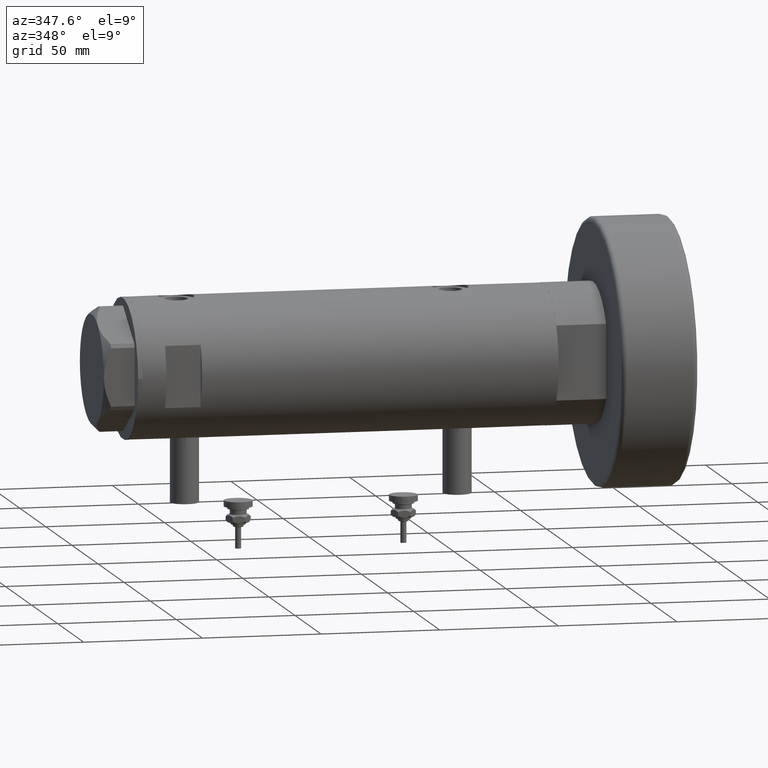
[diagram: clean part render]
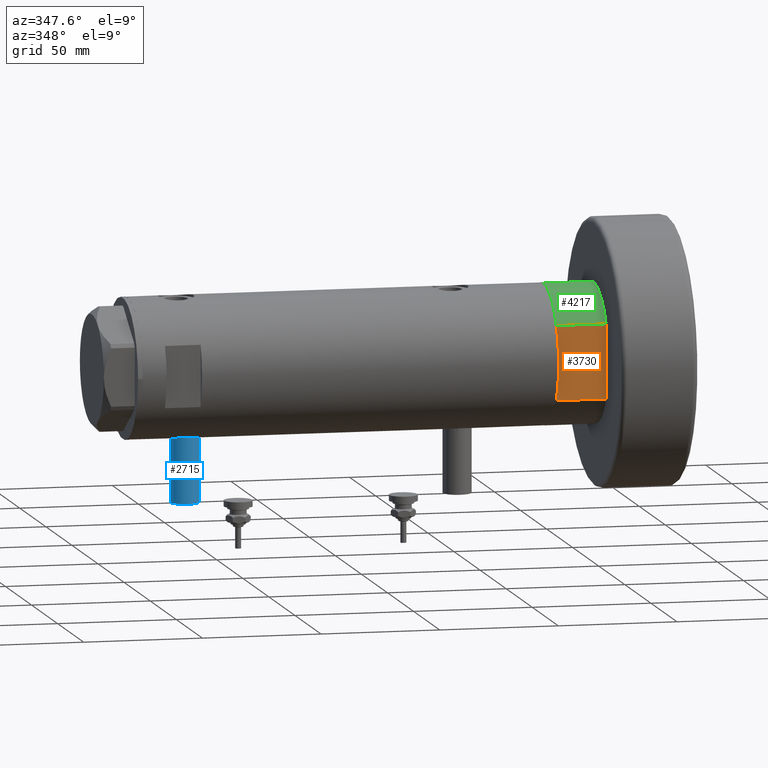
[diagram: same view with three faces highlighted in distinct colors, each labeled with its STEP entity id]
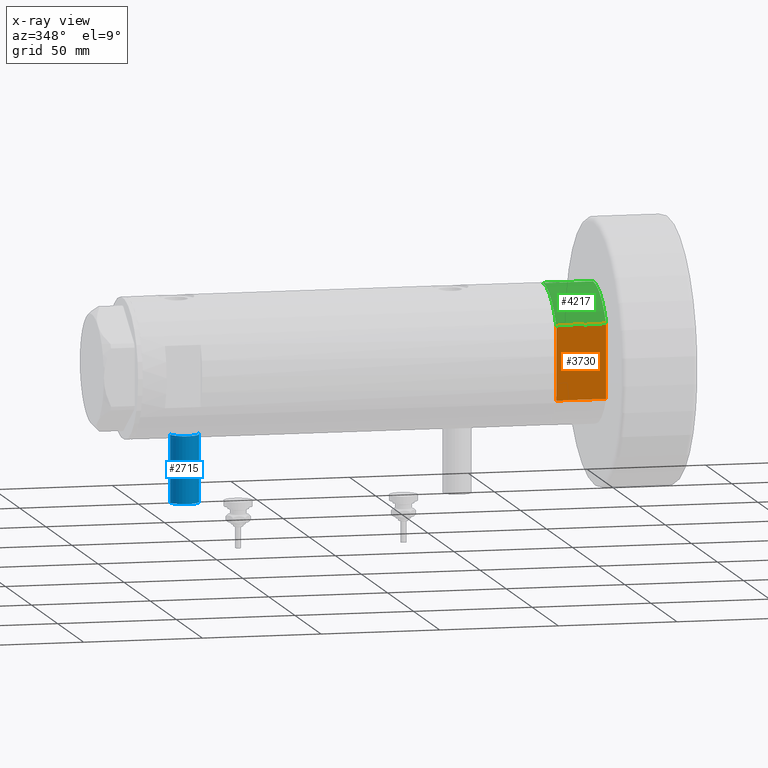
[diagram: x-ray of the same camera — body ghosted, the three highlighted faces saturated]
A machine part, auxiliary view with three faces highlighted in distinct colors.
The next image is the same camera in x-ray (body ghosted, the three faces saturated) — at least one of them is partly hidden behind the body in this view.
Their STEP definitions:

[orange] entity #3730 — the highlighted planar face has unit normal (-0, 1, 0).
#228 = VERTEX_POINT ( 'NONE', #1694 ) ;
#336 = CARTESIAN_POINT ( 'NONE',  ( 15.66045976336583045, -25.00000000000000000, 21.00000000000000355 ) ) ;
#518 = VECTOR ( 'NONE', #4423, 1000.000000000000000 ) ;
#596 = ORIENTED_EDGE ( 'NONE', *, *, #895, .F. ) ;
#728 = EDGE_LOOP ( 'NONE', ( #3196, #4995, #596, #6149, #5701, #3790 ) ) ;
#801 = CARTESIAN_POINT ( 'NONE',  ( 7.141428428542853091, -25.00000000000000000, 0.000000000000000000 ) ) ;
#869 = DIRECTION ( 'NONE',  ( -1.000000000000000000, -0.000000000000000000, -0.000000000000000000 ) ) ;
#895 = EDGE_CURVE ( 'NONE', #228, #3886, #2752, .T. ) ;
#928 = CARTESIAN_POINT ( 'NONE',  ( -15.66045976336583401, -25.00000000000000000, 0.000000000000000000 ) ) ;
#1187 = EDGE_CURVE ( 'NONE', #2099, #1288, #1899, .T. ) ;
#1288 = VERTEX_POINT ( 'NONE', #5241 ) ;
#1490 = LINE ( 'NONE', #928, #1645 ) ;
#1645 = VECTOR ( 'NONE', #869, 1000.000000000000000 ) ;
#1685 = EDGE_CURVE ( 'NONE', #2807, #2099, #2451, .T. ) ;
#1688 = LINE ( 'NONE', #4622, #2677 ) ;
#1694 = CARTESIAN_POINT ( 'NONE',  ( -7.141428428542853091, -25.00000000000000000, 0.000000000000000000 ) ) ;
#1836 = DIRECTION ( 'NONE',  ( -1.000000000000000000, -0.000000000000000000, -0.000000000000000000 ) ) ;
#1899 = LINE ( 'NONE', #4427, #3178 ) ;
#2099 = VERTEX_POINT ( 'NONE', #336 ) ;
#2341 = VECTOR ( 'NONE', #5664, 1000.000000000000000 ) ;
#2451 = LINE ( 'NONE', #2957, #518 ) ;
#2677 = VECTOR ( 'NONE', #3660, 1000.000000000000000 ) ;
#2701 = CARTESIAN_POINT ( 'NONE',  ( -15.66045976336583401, -25.00000000000000000, 0.000000000000000000 ) ) ;
#2752 = LINE ( 'NONE', #5689, #2341 ) ;
#2790 = CARTESIAN_POINT ( 'NONE',  ( 15.66045976336583401, -25.00000000000000000, 0.000000000000000000 ) ) ;
#2807 = VERTEX_POINT ( 'NONE', #2790 ) ;
#2957 = CARTESIAN_POINT ( 'NONE',  ( 15.66045976336583401, -25.00000000000000000, 0.000000000000000000 ) ) ;
#3015 = CARTESIAN_POINT ( 'NONE',  ( -15.66045976336583401, -25.00000000000000000, 0.000000000000000000 ) ) ;
#3146 = CARTESIAN_POINT ( 'NONE',  ( -15.66045976336582690, -25.00000000000000000, 0.000000000000000000 ) ) ;
#3178 = VECTOR ( 'NONE', #1836, 1000.000000000000000 ) ;
#3196 = ORIENTED_EDGE ( 'NONE', *, *, #1187, .T. ) ;
#3660 = DIRECTION ( 'NONE',  ( -1.000000000000000000, -0.000000000000000000, -0.000000000000000000 ) ) ;
#3730 = ADVANCED_FACE ( 'NONE', ( #4095 ), #5003, .F. ) ;
#3790 = ORIENTED_EDGE ( 'NONE', *, *, #1685, .T. ) ;
#3886 = VERTEX_POINT ( 'NONE', #3146 ) ;
#3981 = EDGE_CURVE ( 'NONE', #5760, #228, #1490, .T. ) ;
#4095 = FACE_OUTER_BOUND ( 'NONE', #728, .T. ) ;
#4423 = DIRECTION ( 'NONE',  ( -0.000000000000000000, -0.000000000000000000, 1.000000000000000000 ) ) ;
#4427 = CARTESIAN_POINT ( 'NONE',  ( -15.66045976336583401, -25.00000000000000000, 21.00000000000000000 ) ) ;
#4622 = CARTESIAN_POINT ( 'NONE',  ( -15.66045976336583401, -25.00000000000000000, 0.000000000000000000 ) ) ;
#4624 = EDGE_CURVE ( 'NONE', #3886, #1288, #5142, .T. ) ;
#4682 = DIRECTION ( 'NONE',  ( -0.000000000000000000, -0.000000000000000000, 1.000000000000000000 ) ) ;
#4980 = DIRECTION ( 'NONE',  ( -0.000000000000000000, 1.000000000000000000, 0.000000000000000000 ) ) ;
#4995 = ORIENTED_EDGE ( 'NONE', *, *, #4624, .F. ) ;
#5003 = PLANE ( 'NONE',  #5613 ) ;
#5142 = LINE ( 'NONE', #2701, #5622 ) ;
#5241 = CARTESIAN_POINT ( 'NONE',  ( -15.66045976336583045, -24.99999999999999645, 20.99999999999999645 ) ) ;
#5613 = AXIS2_PLACEMENT_3D ( 'NONE', #3015, #4980, #5954 ) ;
#5622 = VECTOR ( 'NONE', #4682, 1000.000000000000000 ) ;
#5664 = DIRECTION ( 'NONE',  ( -1.000000000000000000, -0.000000000000000000, -0.000000000000000000 ) ) ;
#5689 = CARTESIAN_POINT ( 'NONE',  ( -15.66045976336583401, -25.00000000000000000, 0.000000000000000000 ) ) ;
#5701 = ORIENTED_EDGE ( 'NONE', *, *, #5833, .F. ) ;
#5760 = VERTEX_POINT ( 'NONE', #801 ) ;
#5833 = EDGE_CURVE ( 'NONE', #2807, #5760, #1688, .T. ) ;
#5954 = DIRECTION ( 'NONE',  ( 0.000000000000000000, -0.000000000000000000, 1.000000000000000000 ) ) ;
#6149 = ORIENTED_EDGE ( 'NONE', *, *, #3981, .F. ) ;

[blue] entity #2715 — the highlighted cylindrical surface (edge-blend (fillet) strip) has radius 6 mm, axis along (0, 0, 1).
#144 = LINE ( 'NONE', #3005, #5233 ) ;
#147 = CIRCLE ( 'NONE', #343, 5.999999999999991118 ) ;
#181 = LINE ( 'NONE', #5530, #3918 ) ;
#341 = ORIENTED_EDGE ( 'NONE', *, *, #4079, .F. ) ;
#343 = AXIS2_PLACEMENT_3D ( 'NONE', #1185, #352, #1284 ) ;
#352 = DIRECTION ( 'NONE',  ( -1.000000000000000000, 0.000000000000000000, 0.000000000000000000 ) ) ;
#404 = VERTEX_POINT ( 'NONE', #4325 ) ;
#414 = DIRECTION ( 'NONE',  ( 0.000000000000000000, 0.000000000000000000, -1.000000000000000000 ) ) ;
#544 = CARTESIAN_POINT ( 'NONE',  ( -56.60000000000000142, 7.347880794884101001E-16, 69.59999999999998010 ) ) ;
#1170 = DIRECTION ( 'NONE',  ( 1.000000000000000000, -0.000000000000000000, -0.000000000000000000 ) ) ;
#1185 = CARTESIAN_POINT ( 'NONE',  ( -28.30000000000000071, 0.000000000000000000, 63.59999999999998721 ) ) ;
#1284 = DIRECTION ( 'NONE',  ( 0.000000000000000000, 0.000000000000000000, 1.000000000000000000 ) ) ;
#1295 = EDGE_LOOP ( 'NONE', ( #341, #5396, #2374, #1629 ) ) ;
#1297 = EDGE_CURVE ( 'NONE', #404, #2615, #2649, .T. ) ;
#1391 = VERTEX_POINT ( 'NONE', #5068 ) ;
#1406 = DIRECTION ( 'NONE',  ( 0.000000000000000000, 0.000000000000000000, 1.000000000000000000 ) ) ;
#1441 = AXIS2_PLACEMENT_3D ( 'NONE', #6058, #3888, #1406 ) ;
#1601 = FACE_OUTER_BOUND ( 'NONE', #1295, .T. ) ;
#1629 = ORIENTED_EDGE ( 'NONE', *, *, #5852, .T. ) ;
#1937 = VERTEX_POINT ( 'NONE', #3117 ) ;
#1989 = EDGE_CURVE ( 'NONE', #404, #1937, #181, .T. ) ;
#2323 = DIRECTION ( 'NONE',  ( 1.000000000000000000, -0.000000000000000000, -0.000000000000000000 ) ) ;
#2374 = ORIENTED_EDGE ( 'NONE', *, *, #1989, .T. ) ;
#2510 = DIRECTION ( 'NONE',  ( 1.000000000000000000, -0.000000000000000000, -0.000000000000000000 ) ) ;
#2615 = VERTEX_POINT ( 'NONE', #544 ) ;
#2649 = CIRCLE ( 'NONE', #1441, 5.999999999999991118 ) ;
#2715 = ADVANCED_FACE ( 'NONE', ( #1601 ), #3593, .T. ) ;
#3005 = CARTESIAN_POINT ( 'NONE',  ( -56.60000000000000142, 7.347880794884104945E-16, 69.59999999999998010 ) ) ;
#3117 = CARTESIAN_POINT ( 'NONE',  ( -28.30000000000000071, 0.000000000000000000, 57.60000000000000142 ) ) ;
#3593 = CYLINDRICAL_SURFACE ( 'NONE', #3713, 5.999999999999991118 ) ;
#3713 = AXIS2_PLACEMENT_3D ( 'NONE', #5511, #2323, #414 ) ;
#3888 = DIRECTION ( 'NONE',  ( -1.000000000000000000, 0.000000000000000000, 0.000000000000000000 ) ) ;
#3918 = VECTOR ( 'NONE', #1170, 1000.000000000000000 ) ;
#4079 = EDGE_CURVE ( 'NONE', #2615, #1391, #144, .T. ) ;
#4325 = CARTESIAN_POINT ( 'NONE',  ( -56.60000000000000142, 0.000000000000000000, 57.60000000000000142 ) ) ;
#5068 = CARTESIAN_POINT ( 'NONE',  ( -28.30000000000000071, 7.347880794884101001E-16, 69.59999999999998010 ) ) ;
#5233 = VECTOR ( 'NONE', #2510, 1000.000000000000000 ) ;
#5396 = ORIENTED_EDGE ( 'NONE', *, *, #1297, .F. ) ;
#5511 = CARTESIAN_POINT ( 'NONE',  ( -56.60000000000000142, 0.000000000000000000, 63.59999999999998721 ) ) ;
#5530 = CARTESIAN_POINT ( 'NONE',  ( -56.60000000000000142, 0.000000000000000000, 57.60000000000000142 ) ) ;
#5852 = EDGE_CURVE ( 'NONE', #1937, #1391, #147, .T. ) ;
#6058 = CARTESIAN_POINT ( 'NONE',  ( -56.60000000000000142, 0.000000000000000000, 63.59999999999998721 ) ) ;

[green] entity #4217 — the highlighted cylindrical surface (partial cylindrical patch) has radius 29.5 mm, axis along (-1, -0, 0).
#95 = DIRECTION ( 'NONE',  ( -0.000000000000000000, -0.000000000000000000, -1.000000000000000000 ) ) ;
#264 = DIRECTION ( 'NONE',  ( -1.000000000000000000, 0.000000000000000000, 0.000000000000000000 ) ) ;
#434 = DIRECTION ( 'NONE',  ( 1.000000000000000000, 0.000000000000000000, 0.000000000000000000 ) ) ;
#571 = LINE ( 'NONE', #2526, #1040 ) ;
#852 = DIRECTION ( 'NONE',  ( 1.000000000000000000, 0.000000000000000000, 0.000000000000000000 ) ) ;
#946 = DIRECTION ( 'NONE',  ( 0.000000000000000000, 0.000000000000000000, 1.000000000000000000 ) ) ;
#993 = DIRECTION ( 'NONE',  ( 0.000000000000000000, 0.000000000000000000, 1.000000000000000000 ) ) ;
#1040 = VECTOR ( 'NONE', #95, 1000.000000000000000 ) ;
#1110 = VERTEX_POINT ( 'NONE', #1921 ) ;
#1189 = FACE_OUTER_BOUND ( 'NONE', #6148, .T. ) ;
#1244 = AXIS2_PLACEMENT_3D ( 'NONE', #5182, #2705, #264 ) ;
#1254 = EDGE_CURVE ( 'NONE', #3185, #1288, #6112, .T. ) ;
#1288 = VERTEX_POINT ( 'NONE', #5241 ) ;
#1623 = ORIENTED_EDGE ( 'NONE', *, *, #1254, .F. ) ;
#1921 = CARTESIAN_POINT ( 'NONE',  ( -29.50000000000000355, 0.000000000000000000, 0.000000000000000000 ) ) ;
#2298 = EDGE_CURVE ( 'NONE', #1110, #3886, #5017, .T. ) ;
#2481 = ORIENTED_EDGE ( 'NONE', *, *, #4624, .T. ) ;
#2526 = CARTESIAN_POINT ( 'NONE',  ( -29.50000000000000355, 0.000000000000000000, 21.00000000000000000 ) ) ;
#2701 = CARTESIAN_POINT ( 'NONE',  ( -15.66045976336583401, -25.00000000000000000, 0.000000000000000000 ) ) ;
#2705 = DIRECTION ( 'NONE',  ( -0.000000000000000000, -0.000000000000000000, -1.000000000000000000 ) ) ;
#2735 = CYLINDRICAL_SURFACE ( 'NONE', #1244, 29.50000000000000355 ) ;
#2885 = CARTESIAN_POINT ( 'NONE',  ( 0.000000000000000000, 0.000000000000000000, 0.000000000000000000 ) ) ;
#3146 = CARTESIAN_POINT ( 'NONE',  ( -15.66045976336582690, -25.00000000000000000, 0.000000000000000000 ) ) ;
#3185 = VERTEX_POINT ( 'NONE', #3796 ) ;
#3796 = CARTESIAN_POINT ( 'NONE',  ( -29.50000000000000355, 0.000000000000000000, 21.00000000000000000 ) ) ;
#3886 = VERTEX_POINT ( 'NONE', #3146 ) ;
#4114 = AXIS2_PLACEMENT_3D ( 'NONE', #5333, #946, #852 ) ;
#4217 = ADVANCED_FACE ( 'NONE', ( #1189 ), #2735, .T. ) ;
#4579 = ORIENTED_EDGE ( 'NONE', *, *, #2298, .T. ) ;
#4624 = EDGE_CURVE ( 'NONE', #3886, #1288, #5142, .T. ) ;
#4682 = DIRECTION ( 'NONE',  ( -0.000000000000000000, -0.000000000000000000, 1.000000000000000000 ) ) ;
#5017 = CIRCLE ( 'NONE', #5509, 29.50000000000000355 ) ;
#5142 = LINE ( 'NONE', #2701, #5622 ) ;
#5182 = CARTESIAN_POINT ( 'NONE',  ( 0.000000000000000000, 0.000000000000000000, 21.00000000000000000 ) ) ;
#5241 = CARTESIAN_POINT ( 'NONE',  ( -15.66045976336583045, -24.99999999999999645, 20.99999999999999645 ) ) ;
#5277 = EDGE_CURVE ( 'NONE', #3185, #1110, #571, .T. ) ;
#5333 = CARTESIAN_POINT ( 'NONE',  ( 0.000000000000000000, 0.000000000000000000, 21.00000000000000000 ) ) ;
#5509 = AXIS2_PLACEMENT_3D ( 'NONE', #2885, #993, #434 ) ;
#5555 = ORIENTED_EDGE ( 'NONE', *, *, #5277, .T. ) ;
#5622 = VECTOR ( 'NONE', #4682, 1000.000000000000000 ) ;
#6112 = CIRCLE ( 'NONE', #4114, 29.50000000000000355 ) ;
#6148 = EDGE_LOOP ( 'NONE', ( #1623, #5555, #4579, #2481 ) ) ;